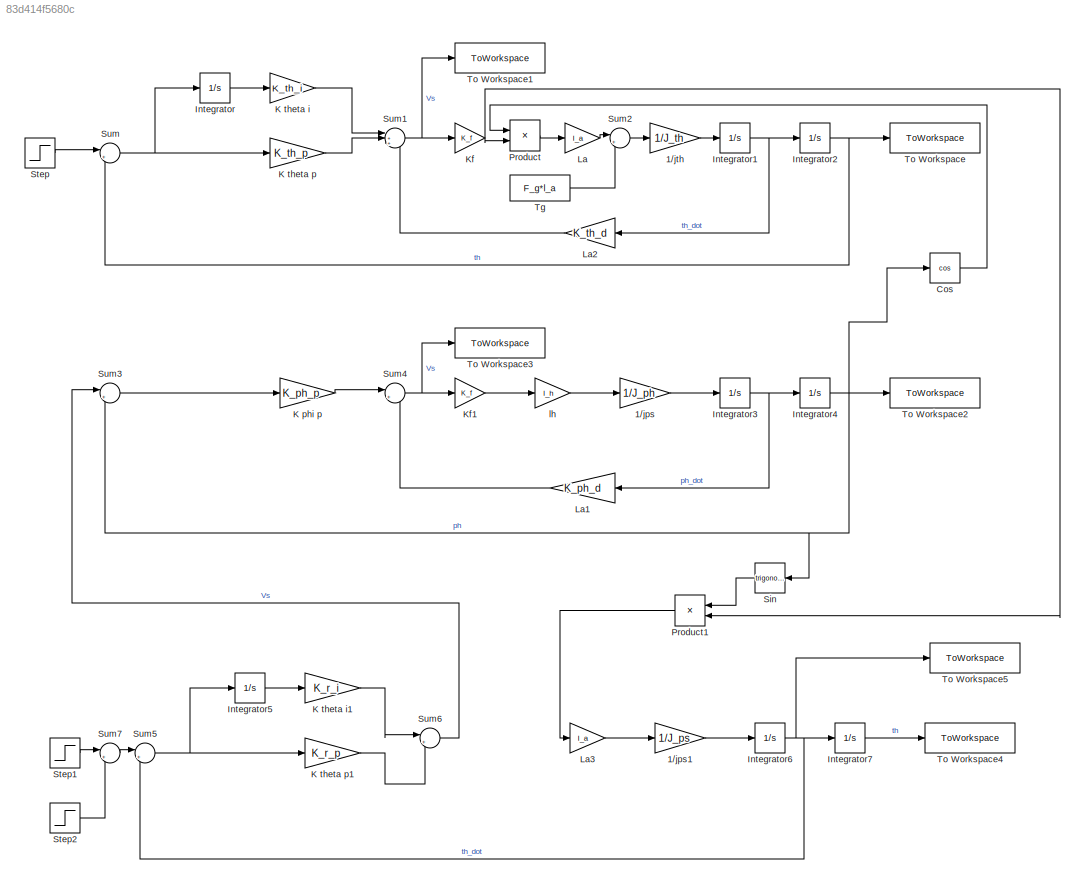
MODEL slx_83d414f5680c
KIND model
CONFIG AbsTol = auto
CONFIG EnableMultiTasking = off
CONFIG FixedStep = 0.01
CONFIG MaxStep = auto
CONFIG MinStep = auto
CONFIG RelTol = 1e-3
CONFIG SampleTimeConstraint = Unconstrained
CONFIG SolverName = FixedStepAuto
CONFIG StartTime = 0.0
CONFIG StopTime = 200
BLOCK [Gain] 1//jps
  Gain = 1/J_ph
BLOCK [Gain] 1//jps1
  Gain = 1/J_ps
BLOCK [Gain] 1//jth
  Gain = 1/J_th
BLOCK [Trigonometry] Cos
  Operator = cos
  Ports = [1, 1]
BLOCK [Integrator] Integrator
  Ports = [1, 1]
BLOCK [Integrator] Integrator1
  Ports = [1, 1]
BLOCK [Integrator] Integrator2
  Ports = [1, 1]
BLOCK [Integrator] Integrator3
  Ports = [1, 1]
BLOCK [Integrator] Integrator4
  Ports = [1, 1]
BLOCK [Integrator] Integrator5
  Ports = [1, 1]
BLOCK [Integrator] Integrator6
  Ports = [1, 1]
BLOCK [Integrator] Integrator7
  Ports = [1, 1]
BLOCK [Gain] K phi p
  Gain = K_ph_p
BLOCK [Gain] K theta i
  Gain = K_th_i
BLOCK [Gain] K theta i1
  Gain = K_r_i
BLOCK [Gain] K theta p
  Gain = K_th_p
BLOCK [Gain] K theta p1
  Gain = K_r_p
BLOCK [Gain] Kf
  Gain = K_f
BLOCK [Gain] Kf1
  Gain = K_f
BLOCK [Gain] La
  Gain = l_a
BLOCK [Gain] La1
  Gain = K_ph_d
  NameLocation = top
BLOCK [Gain] La2
  Gain = K_th_d
  NameLocation = top
BLOCK [Gain] La3
  Gain = l_a
BLOCK [Product] Product
  Ports = [2, 1]
BLOCK [Product] Product1
  NameLocation = top
  Ports = [2, 1]
BLOCK [Trigonometry] Sin
  NameLocation = top
  Ports = [1, 1]
BLOCK [Step] Step
  After = deg2rad(20)
  SampleTime = 0.01
  Time = 100
BLOCK [Step] Step1
  After = deg2rad(10)
  SampleTime = 0.01
  Time = 100
BLOCK [Step] Step2
  After = deg2rad(10)
  SampleTime = 0.01
  Time = 118
BLOCK [Sum] Sum
  Inputs = |+-
  Ports = [2, 1]
BLOCK [Sum] Sum1
  Inputs = |++-
  Ports = [3, 1]
BLOCK [Sum] Sum2
  Inputs = |+-
  Ports = [2, 1]
BLOCK [Sum] Sum3
  Inputs = |+-
  Ports = [2, 1]
BLOCK [Sum] Sum4
  Inputs = |+-
  Ports = [2, 1]
BLOCK [Sum] Sum5
  Inputs = |+-
  Ports = [2, 1]
BLOCK [Sum] Sum6
  Inputs = |++
  Ports = [2, 1]
BLOCK [Sum] Sum7
  Inputs = |+-
  Ports = [2, 1]
BLOCK [Constant] Tg
  Value = F_g*l_a
BLOCK [ToWorkspace] To Workspace
  FixptAsFi = on
  MaxDataPoints = inf
  Ports = [1]
  SampleTime = -1
  VariableName = pitch_out
BLOCK [ToWorkspace] To Workspace1
  FixptAsFi = on
  MaxDataPoints = inf
  Ports = [1]
  SampleTime = -1
  VariableName = pitch_Vs
BLOCK [ToWorkspace] To Workspace2
  FixptAsFi = on
  MaxDataPoints = inf
  Ports = [1]
  SampleTime = -1
  VariableName = roll_out
BLOCK [ToWorkspace] To Workspace3
  FixptAsFi = on
  MaxDataPoints = inf
  Ports = [1]
  SampleTime = -1
  VariableName = roll_Vd
BLOCK [ToWorkspace] To Workspace4
  FixptAsFi = on
  MaxDataPoints = inf
  Ports = [1]
  SampleTime = -1
  VariableName = yaw_out
BLOCK [ToWorkspace] To Workspace5
  FixptAsFi = on
  MaxDataPoints = inf
  Ports = [1]
  SampleTime = -1
  VariableName = yaw_rate
BLOCK [Gain] lh
  Gain = l_h
LINE 1//jps1:1 -> Integrator6:1
LINE 1//jps:1 -> Integrator3:1
LINE 1//jth:1 -> Integrator1:1
LINE Cos:1 -> Product:1
NET Integrator1:1 -> Integrator2:1, La2:1
NET Integrator2:1 -> Sum:2, To Workspace:1
NET Integrator3:1 -> Integrator4:1, La1:1
NET Integrator4:1 -> Cos:1, Sin:1, Sum3:2, To Workspace2:1
LINE Integrator5:1 -> K theta i1:1
NET Integrator6:1 -> Integrator7:1, Sum5:2, To Workspace5:1
LINE Integrator7:1 -> To Workspace4:1
LINE Integrator:1 -> K theta i:1
LINE K phi p:1 -> Sum4:1
LINE K theta i1:1 -> Sum6:1
LINE K theta i:1 -> Sum1:1
LINE K theta p1:1 -> Sum6:2
LINE K theta p:1 -> Sum1:2
LINE Kf1:1 -> lh:1
NET Kf:1 -> Product1:2, Product:2
LINE La1:1 -> Sum4:2
LINE La2:1 -> Sum1:3
LINE La3:1 -> 1//jps1:1
LINE La:1 -> Sum2:1
LINE Product1:1 -> La3:1
LINE Product:1 -> La:1
LINE Sin:1 -> Product1:1
LINE Step1:1 -> Sum7:1
LINE Step2:1 -> Sum7:2
LINE Step:1 -> Sum:1
NET Sum1:1 -> Kf:1, To Workspace1:1
LINE Sum2:1 -> 1//jth:1
LINE Sum3:1 -> K phi p:1
NET Sum4:1 -> Kf1:1, To Workspace3:1
NET Sum5:1 -> Integrator5:1, K theta p1:1
LINE Sum6:1 -> Sum3:1
LINE Sum7:1 -> Sum5:1
NET Sum:1 -> Integrator:1, K theta p:1
LINE Tg:1 -> Sum2:2
LINE lh:1 -> 1//jps:1
note: NET lines group one-source signal fan-out (src -> all destinations, sorted); 1:1 wires keep LINE
